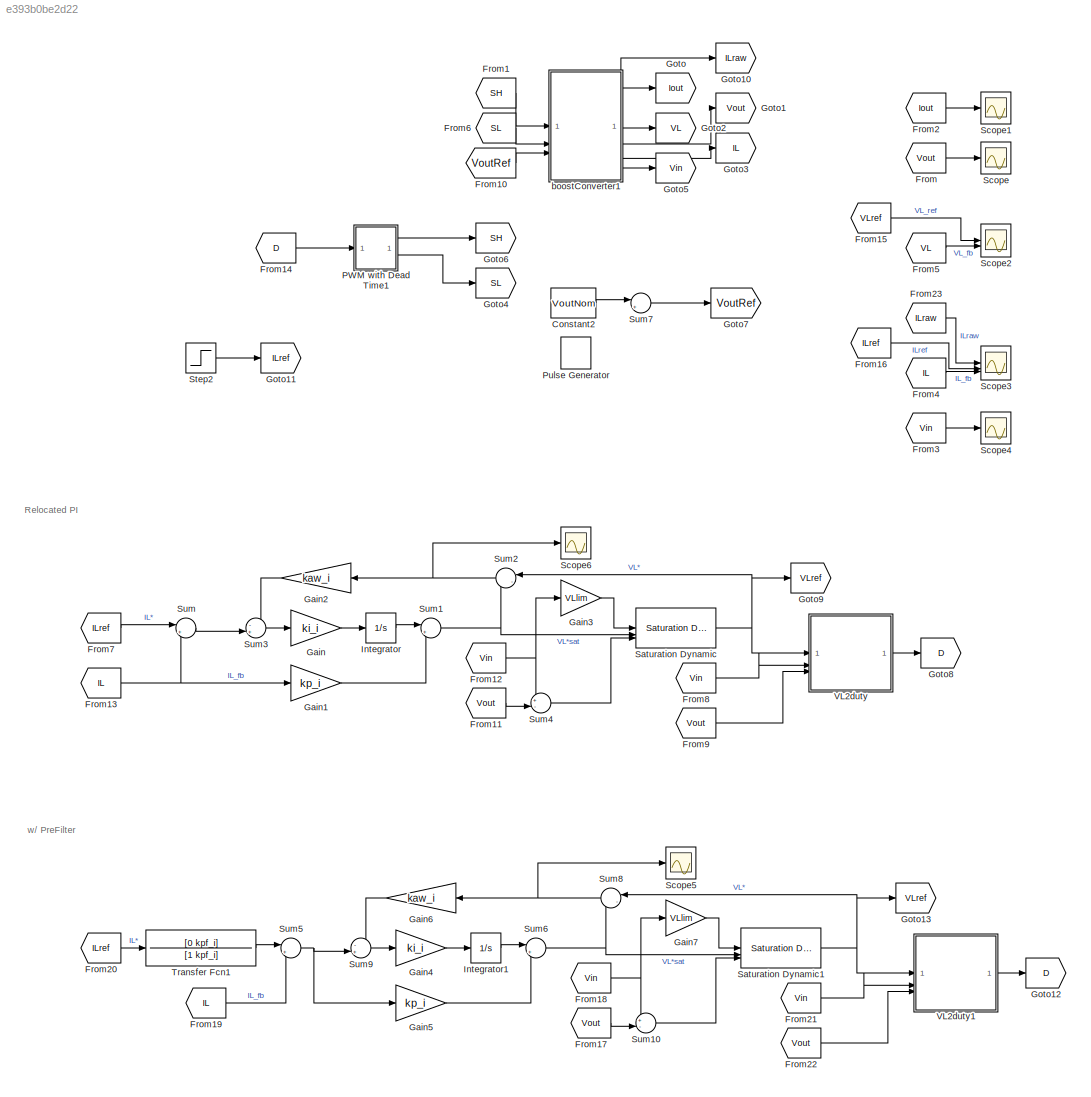
MODEL slx_e393b0be2d22
KIND model
CONFIG AbsTol = auto
CONFIG EnableMultiTasking = off
CONFIG FixedStep = Tstep
CONFIG MaxStep = auto
CONFIG MinStep = auto
CONFIG RelTol = 1e-3
CONFIG SampleTimeConstraint = Unconstrained
CONFIG SolverName = ode1
CONFIG StartTime = 0.0
CONFIG StopTime = Tsim_inLoop
BLOCK [Constant] Constant2
  Value = VoutNom
BLOCK [From] From
  GotoTag = Vout
BLOCK [From] From1
  GotoTag = SH
BLOCK [From] From10
  GotoTag = VoutRef
BLOCK [From] From11
  GotoTag = Vout
BLOCK [From] From12
  GotoTag = Vin
BLOCK [From] From13
  GotoTag = IL
BLOCK [From] From14
  GotoTag = D
BLOCK [From] From15
  GotoTag = VLref
BLOCK [From] From16
  GotoTag = ILref
BLOCK [From] From17
  Commented = on
  GotoTag = Vout
BLOCK [From] From18
  Commented = on
  GotoTag = Vin
BLOCK [From] From19
  Commented = on
  GotoTag = IL
BLOCK [From] From2
  GotoTag = Iout
BLOCK [From] From20
  Commented = on
  GotoTag = ILref
BLOCK [From] From21
  Commented = on
  GotoTag = Vin
BLOCK [From] From22
  Commented = on
  GotoTag = Vout
BLOCK [From] From23
  GotoTag = ILraw
BLOCK [From] From3
  GotoTag = Vin
BLOCK [From] From4
  GotoTag = IL
BLOCK [From] From5
  GotoTag = VL
BLOCK [From] From6
  GotoTag = SL
BLOCK [From] From7
  GotoTag = ILref
BLOCK [From] From8
  GotoTag = Vin
BLOCK [From] From9
  GotoTag = Vout
BLOCK [Gain] Gain
  Gain = ki_i
BLOCK [Gain] Gain1
  Gain = kp_i
BLOCK [Gain] Gain2
  Gain = kaw_i
  NameLocation = top
BLOCK [Gain] Gain3
  Gain = VLlim
BLOCK [Gain] Gain4
  Commented = on
  Gain = ki_i
BLOCK [Gain] Gain5
  Commented = on
  Gain = kp_i
BLOCK [Gain] Gain6
  Commented = on
  Gain = kaw_i
  NameLocation = top
BLOCK [Gain] Gain7
  Commented = on
  Gain = VLlim
BLOCK [Goto] Goto
  GotoTag = Iout
BLOCK [Goto] Goto1
  GotoTag = Vout
BLOCK [Goto] Goto10
  GotoTag = ILraw
BLOCK [Goto] Goto11
  GotoTag = ILref
BLOCK [Goto] Goto12
  Commented = on
  GotoTag = D
BLOCK [Goto] Goto13
  Commented = on
  GotoTag = VLref
BLOCK [Goto] Goto2
  GotoTag = VL
BLOCK [Goto] Goto3
  GotoTag = IL
BLOCK [Goto] Goto4
  GotoTag = SL
BLOCK [Goto] Goto5
  GotoTag = Vin
BLOCK [Goto] Goto6
  GotoTag = SH
BLOCK [Goto] Goto7
  GotoTag = VoutRef
BLOCK [Goto] Goto8
  GotoTag = D
BLOCK [Goto] Goto9
  GotoTag = VLref
BLOCK [Integrator] Integrator
BLOCK [Integrator] Integrator1
  Commented = on
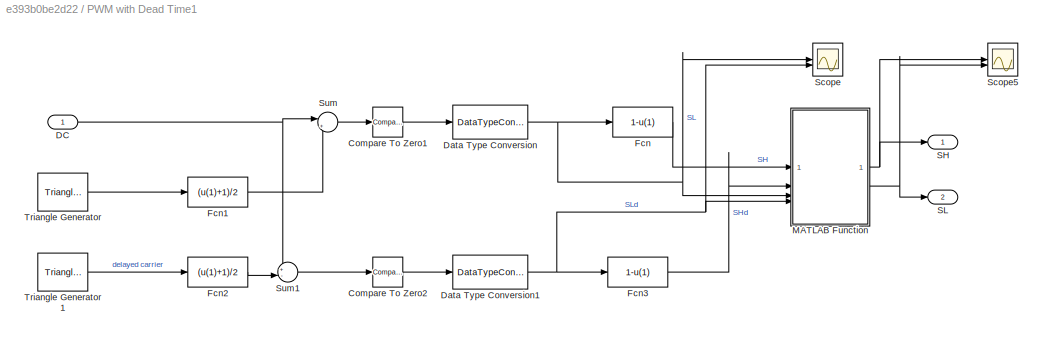
BLOCK [SubSystem] PWM with Dead Time1
BLOCK [Reference] PWM with Dead Time1/Compare To Zero1  REF=simulink/Logic and Bit
Operations/Compare
To Zero
  SourceBlock = simulink/Logic and Bit\nOperations/Compare\nTo Zero
  SourceType = Compare To Zero
BLOCK [Reference] PWM with Dead Time1/Compare To Zero2  REF=simulink/Logic and Bit
Operations/Compare
To Zero
  SourceBlock = simulink/Logic and Bit\nOperations/Compare\nTo Zero
  SourceType = Compare To Zero
BLOCK [Inport] PWM with Dead Time1/DC
BLOCK [DataTypeConversion] PWM with Dead Time1/Data Type Conversion
  RndMeth = Floor
  SaturateOnIntegerOverflow = off
BLOCK [DataTypeConversion] PWM with Dead Time1/Data Type Conversion1
  RndMeth = Floor
  SaturateOnIntegerOverflow = off
BLOCK [Fcn] PWM with Dead Time1/Fcn
  Expr = 1-u(1)
BLOCK [Fcn] PWM with Dead Time1/Fcn1
  Expr = (u(1)+1)/2
BLOCK [Fcn] PWM with Dead Time1/Fcn2
  Expr = (u(1)+1)/2
BLOCK [Fcn] PWM with Dead Time1/Fcn3
  Expr = 1-u(1)
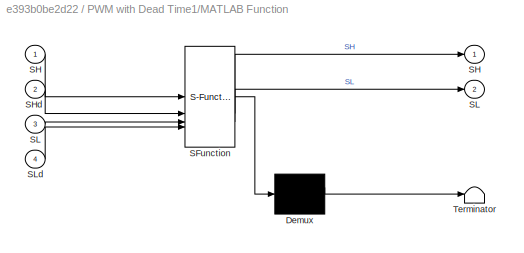
BLOCK [SubSystem] PWM with Dead Time1/MATLAB Function
  ErrorFcn = Stateflow.Translate.translate
  PermitHierarchicalResolution = ExplicitOnly
  SFBlockType = MATLAB Function
  TreatAsAtomicUnit = on
BLOCK [Demux] PWM with Dead Time1/MATLAB Function/ Demux 
  Outputs = 1
BLOCK [S-Function] PWM with Dead Time1/MATLAB Function/ SFunction 
  EnableBusSupport = off
  FunctionName = sf_sfun
  PortCounts = [4 3]
  SFcnIsStateOwnerBlock = off
  SFunctionDeploymentMode = off
  Tag = Stateflow S-Function 2
BLOCK [Terminator] PWM with Dead Time1/MATLAB Function/ Terminator 
BLOCK [Outport] PWM with Dead Time1/MATLAB Function/SH
BLOCK [Inport] PWM with Dead Time1/MATLAB Function/SH 
BLOCK [Inport] PWM with Dead Time1/MATLAB Function/SHd
  Port = 2
BLOCK [Outport] PWM with Dead Time1/MATLAB Function/SL
  Port = 2
BLOCK [Inport] PWM with Dead Time1/MATLAB Function/SL 
  Port = 3
BLOCK [Inport] PWM with Dead Time1/MATLAB Function/SLd
  Port = 4
BLOCK [Outport] PWM with Dead Time1/SH
BLOCK [Outport] PWM with Dead Time1/SL
  Port = 2
BLOCK [Scope] PWM with Dead Time1/Scope
  Floating = off
  NameLocation = left
  NumInputPorts = 2
  ScopeSpecificationString = Simulink.scopes.TimeScopeBlockCfg('CurrentConfiguration', extmgr.ConfigurationSet(extmgr.Configuration('Core','General UI',true),extmgr.Configuration('Core','Source UI',true),extmgr.Configuration('Sources','WiredSimulink',true,'DataLoggingVariableName','ScopeData1'),extmgr.Configuration('Visuals','Time Domain',true,'SerializedDisplays',{struct('MinYLimReal','-0.125','MaxYLimReal','1.125','YLabelRe...<+1399ch>
BLOCK [Scope] PWM with Dead Time1/Scope5
  Floating = off
  NumInputPorts = 2
  ScopeSpecificationString = Simulink.scopes.TimeScopeBlockCfg('CurrentConfiguration', extmgr.ConfigurationSet(extmgr.Configuration('Core','General UI',true),extmgr.Configuration('Core','Source UI',true),extmgr.Configuration('Sources','WiredSimulink',true,'DataLoggingVariableName','ScopeData1'),extmgr.Configuration('Visuals','Time Domain',true,'SerializedDisplays',{struct('MinYLimReal','-0.125','MaxYLimReal','1.125','YLabelRe...<+1482ch>
BLOCK [Sum] PWM with Dead Time1/Sum
  Inputs = |+-
BLOCK [Sum] PWM with Dead Time1/Sum1
  Inputs = +-|
BLOCK [Reference] PWM with Dead Time1/Triangle Generator  REF=spsTriangleGeneratorLib/Triangle
Generator
  LibrarySourceBlock = sps_lib/Sources/Signal Generator Sources/Triangle\nGenerator
  SourceBlock = spsTriangleGeneratorLib/Triangle\nGenerator
  SourceType = Triangle Generator
BLOCK [Reference] PWM with Dead Time1/Triangle Generator1  REF=spsTriangleGeneratorLib/Triangle
Generator
  LibrarySourceBlock = sps_lib/Sources/Signal Generator Sources/Triangle\nGenerator
  SourceBlock = spsTriangleGeneratorLib/Triangle\nGenerator
  SourceType = Triangle Generator
BLOCK [DiscretePulseGenerator] Pulse Generator
  Amplitude = -VoutNom/10
  NameLocation = top
  Period = 0.06
  PulseType = Time based
  PulseWidth = 50
BLOCK [Reference] Saturation Dynamic  REF=simulink/Discontinuities/Saturation
Dynamic
  SourceBlock = simulink/Discontinuities/Saturation\nDynamic
  SourceType = Saturation Dynamic
BLOCK [Reference] Saturation Dynamic1  REF=simulink/Discontinuities/Saturation
Dynamic
  Commented = on
  SourceBlock = simulink/Discontinuities/Saturation\nDynamic
  SourceType = Saturation Dynamic
BLOCK [Scope] Scope
  Floating = off
  NumInputPorts = 1
  ScopeSpecificationString = Simulink.scopes.TimeScopeBlockCfg('CurrentConfiguration', extmgr.ConfigurationSet(extmgr.Configuration('Core','General UI',true),extmgr.Configuration('Core','Source UI',true),extmgr.Configuration('Sources','WiredSimulink',true),extmgr.Configuration('Visuals','Time Domain',true,'SerializedDisplays',{struct('MinYLimReal','-94.16002','MaxYLimReal','847.44021','YLabelReal','','MinYLimMag','0.00000','M...<+1388ch>
BLOCK [Scope] Scope1
  Floating = off
  NumInputPorts = 1
  ScopeSpecificationString = Simulink.scopes.TimeScopeBlockCfg('CurrentConfiguration', extmgr.ConfigurationSet(extmgr.Configuration('Core','General UI',true),extmgr.Configuration('Core','Source UI',true),extmgr.Configuration('Sources','WiredSimulink',true,'DataLoggingVariableName','ScopeData1'),extmgr.Configuration('Visuals','Time Domain',true,'SerializedDisplays',{struct('MinYLimReal','-0.05101','MaxYLimReal','0.45908','YLab...<+1409ch>
BLOCK [Scope] Scope2
  Floating = off
  NumInputPorts = 2
  ScopeSpecificationString = Simulink.scopes.TimeScopeBlockCfg('CurrentConfiguration', extmgr.ConfigurationSet(extmgr.Configuration('Core','General UI',true),extmgr.Configuration('Core','Source UI',true),extmgr.Configuration('Sources','WiredSimulink',true,'DataLoggingVariableName','ScopeData2'),extmgr.Configuration('Visuals','Time Domain',true,'SerializedDisplays',{struct('MinYLimReal','-32.59384','MaxYLimReal','42.84875','YL...<+1377ch>
BLOCK [Scope] Scope3
  Floating = off
  NumInputPorts = 3
  ScopeSpecificationString = Simulink.scopes.TimeScopeBlockCfg('CurrentConfiguration', extmgr.ConfigurationSet(extmgr.Configuration('Core','General UI',true),extmgr.Configuration('Core','Source UI',true),extmgr.Configuration('Sources','WiredSimulink',true,'DataLoggingVariableName','ScopeData3'),extmgr.Configuration('Visuals','Time Domain',true,'SerializedDisplays',{struct('MinYLimReal','-1.22687','MaxYLimReal','6.4375','YLabe...<+1514ch>
BLOCK [Scope] Scope4
  Floating = off
  NumInputPorts = 1
  ScopeSpecificationString = Simulink.scopes.TimeScopeBlockCfg('CurrentConfiguration', extmgr.ConfigurationSet(extmgr.Configuration('Core','General UI',true),extmgr.Configuration('Core','Source UI',true),extmgr.Configuration('Sources','WiredSimulink',true,'DataLoggingVariableName','ScopeData4'),extmgr.Configuration('Visuals','Time Domain',true),extmgr.Configuration('Tools','Plot Navigation',true),extmgr.Configuration('Tools',...<+40ch>
BLOCK [Scope] Scope5
  Commented = on
  Floating = off
  NumInputPorts = 1
  ScopeSpecificationString = Simulink.scopes.TimeScopeBlockCfg('CurrentConfiguration', extmgr.ConfigurationSet(extmgr.Configuration('Core','General UI',true),extmgr.Configuration('Core','Source UI',true),extmgr.Configuration('Sources','WiredSimulink',true,'DataLoggingVariableName','ScopeData1'),extmgr.Configuration('Visuals','Time Domain',true,'SerializedDisplays',{struct('MinYLimReal','-0.00687','MaxYLimReal','0.06186','YLab...<+1363ch>
BLOCK [Scope] Scope6
  Floating = off
  NumInputPorts = 1
  ScopeSpecificationString = Simulink.scopes.TimeScopeBlockCfg('CurrentConfiguration', extmgr.ConfigurationSet(extmgr.Configuration('Core','General UI',true),extmgr.Configuration('Core','Source UI',true),extmgr.Configuration('Sources','WiredSimulink',true,'DataLoggingVariableName','ScopeData2'),extmgr.Configuration('Visuals','Time Domain',true,'SerializedDisplays',{struct('MinYLimReal','-0.00687','MaxYLimReal','0.06186','YLab...<+1363ch>
BLOCK [Step] Step2
  After = ILnom
  SampleTime = 0
  Time = 0.02
BLOCK [Sum] Sum
  Inputs = |+-
BLOCK [Sum] Sum1
  Inputs = |+-
BLOCK [Sum] Sum10
  Commented = on
  Inputs = +-|
BLOCK [Sum] Sum2
  Inputs = |-+
  NameLocation = top
BLOCK [Sum] Sum3
  Inputs = -+|
BLOCK [Sum] Sum4
  Inputs = +-|
BLOCK [Sum] Sum5
  Commented = on
  Inputs = |+-
BLOCK [Sum] Sum6
  Commented = on
  Inputs = |++
BLOCK [Sum] Sum7
  Inputs = |++
BLOCK [Sum] Sum8
  Commented = on
  Inputs = |-+
  NameLocation = top
BLOCK [Sum] Sum9
  Commented = on
  Inputs = -+|
BLOCK [TransferFcn] Transfer Fcn1
  Commented = on
  Denominator = [1 kpf_i]
  Numerator = [0 kpf_i]
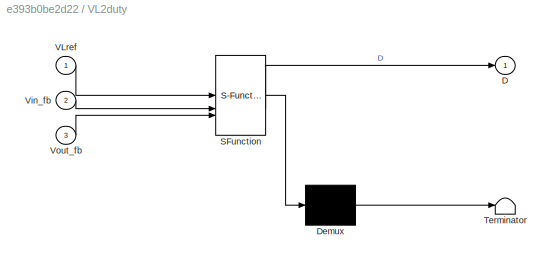
BLOCK [SubSystem] VL2duty
  ErrorFcn = Stateflow.Translate.translate
  PermitHierarchicalResolution = ExplicitOnly
  SFBlockType = MATLAB Function
  TreatAsAtomicUnit = on
BLOCK [Demux] VL2duty/ Demux 
  Outputs = 1
BLOCK [S-Function] VL2duty/ SFunction 
  EnableBusSupport = off
  FunctionName = sf_sfun
  PortCounts = [3 2]
  SFcnIsStateOwnerBlock = off
  SFunctionDeploymentMode = off
  Tag = Stateflow S-Function 1
BLOCK [Terminator] VL2duty/ Terminator 
BLOCK [Outport] VL2duty/D
  VectorParamsAs1DForOutWhenUnconnected = off
BLOCK [Inport] VL2duty/VLref
BLOCK [Inport] VL2duty/Vin_fb
  Port = 2
BLOCK [Inport] VL2duty/Vout_fb
  Port = 3
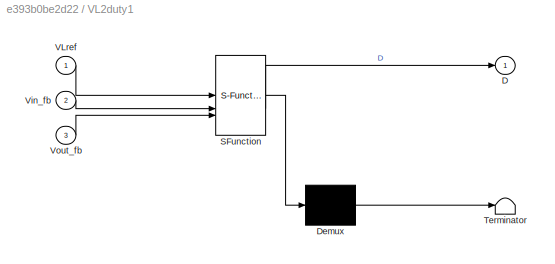
BLOCK [SubSystem] VL2duty1
  Commented = on
  ErrorFcn = Stateflow.Translate.translate
  PermitHierarchicalResolution = ExplicitOnly
  SFBlockType = MATLAB Function
  TreatAsAtomicUnit = on
BLOCK [Demux] VL2duty1/ Demux 
  Outputs = 1
BLOCK [S-Function] VL2duty1/ SFunction 
  EnableBusSupport = off
  FunctionName = sf_sfun
  PortCounts = [3 2]
  SFcnIsStateOwnerBlock = off
  SFunctionDeploymentMode = off
  Tag = Stateflow S-Function 3
BLOCK [Terminator] VL2duty1/ Terminator 
BLOCK [Outport] VL2duty1/D
  VectorParamsAs1DForOutWhenUnconnected = off
BLOCK [Inport] VL2duty1/VLref
BLOCK [Inport] VL2duty1/Vin_fb
  Port = 2
BLOCK [Inport] VL2duty1/Vout_fb
  Port = 3
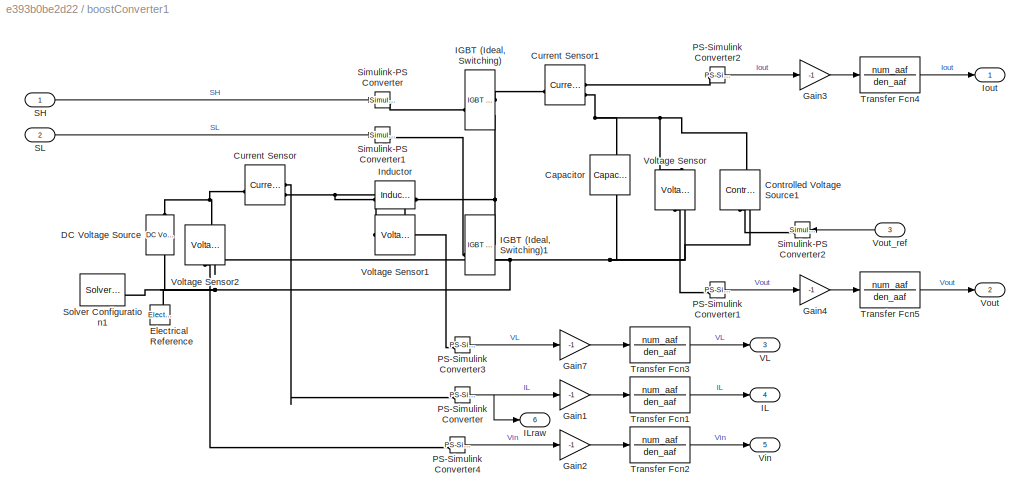
BLOCK [SubSystem] boostConverter1
  PortSchema = {"entries":[{"content":{"sides":[{"content":{"connectorIds":["In1","In2","In3"]},"type":"ConnectorPlacement.EquallySpacedRectSide","uuid":"f64c5b96-5270-450d-83a1-7f94004d5741"},{"content":{"connectorIds":["Out1","Out2","Out3","Out4","Out5"],"side":"RIGHT"},"type":"ConnectorPlacement.EquallySpacedRectSide","uuid":"abc9637e-7ceb-4796-9d9d-6f7414985a96"},{"content":{"connectorIds":["Out6"],"side":"T...<+286ch>
BLOCK [Reference] boostConverter1/Capacitor  REF=fl_lib/Electrical/Electrical Elements/Capacitor
  NameLocation = left
  SourceBlock = fl_lib/Electrical/Electrical Elements/Capacitor
  SourceType = Capacitor
BLOCK [Reference] boostConverter1/Controlled Voltage Source1  REF=fl_lib/Electrical/Electrical Sources/Controlled Voltage
Source
  NameLocation = right
  SourceBlock = fl_lib/Electrical/Electrical Sources/Controlled Voltage\nSource
  SourceType = Controlled Voltage\nSource
BLOCK [Reference] boostConverter1/Current Sensor  REF=fl_lib/Electrical/Electrical Sensors/Current Sensor
  LibrarySourceBlock = ee_lib/Sensors &\nTransducers/Current Sensor
  SourceBlock = fl_lib/Electrical/Electrical Sensors/Current Sensor
  SourceType = Current Sensor
BLOCK [Reference] boostConverter1/Current Sensor1  REF=fl_lib/Electrical/Electrical Sensors/Current Sensor
  LibrarySourceBlock = ee_lib/Sensors &\nTransducers/Current Sensor
  SourceBlock = fl_lib/Electrical/Electrical Sensors/Current Sensor
  SourceType = Current Sensor
BLOCK [Reference] boostConverter1/DC Voltage Source  REF=fl_lib/Electrical/Electrical Sources/DC Voltage Source
  NameLocation = right
  SourceBlock = fl_lib/Electrical/Electrical Sources/DC Voltage Source
  SourceType = DC Voltage Source
BLOCK [Reference] boostConverter1/Electrical Reference  REF=fl_lib/Electrical/Electrical Elements/Electrical Reference
  NameLocation = right
  SourceBlock = fl_lib/Electrical/Electrical Elements/Electrical Reference
  SourceType = Electrical Reference
BLOCK [Gain] boostConverter1/Gain1
  Gain = -1
BLOCK [Gain] boostConverter1/Gain2
  Gain = -1
BLOCK [Gain] boostConverter1/Gain3
  Gain = -1
BLOCK [Gain] boostConverter1/Gain4
  Gain = -1
BLOCK [Gain] boostConverter1/Gain7
  Gain = -1
BLOCK [Reference] boostConverter1/IGBT (Ideal, Switching)  REF=ee_lib/Semiconductors &
Converters/IGBT
(Ideal,
Switching)
  SourceBlock = ee_lib/Semiconductors &\nConverters/IGBT\n(Ideal,\nSwitching)
  SourceType = IGBT\n(Ideal,\nSwitching)
BLOCK [Reference] boostConverter1/IGBT (Ideal, Switching)1  REF=ee_lib/Semiconductors &
Converters/IGBT
(Ideal,
Switching)
  SourceBlock = ee_lib/Semiconductors &\nConverters/IGBT\n(Ideal,\nSwitching)
  SourceType = IGBT\n(Ideal,\nSwitching)
BLOCK [Outport] boostConverter1/IL
  Port = 4
BLOCK [Outport] boostConverter1/ILraw
  Port = 6
BLOCK [Reference] boostConverter1/Inductor  REF=fl_lib/Electrical/Electrical Elements/Inductor
  SourceBlock = fl_lib/Electrical/Electrical Elements/Inductor
  SourceType = Inductor
BLOCK [Outport] boostConverter1/Iout
BLOCK [Reference] boostConverter1/PS-Simulink Converter  REF=nesl_utility/PS-Simulink
Converter
  SourceBlock = nesl_utility/PS-Simulink\nConverter
  SourceType = PS-Simulink\nConverter
BLOCK [Reference] boostConverter1/PS-Simulink Converter1  REF=nesl_utility/PS-Simulink
Converter
  SourceBlock = nesl_utility/PS-Simulink\nConverter
  SourceType = PS-Simulink\nConverter
BLOCK [Reference] boostConverter1/PS-Simulink Converter2  REF=nesl_utility/PS-Simulink
Converter
  SourceBlock = nesl_utility/PS-Simulink\nConverter
  SourceType = PS-Simulink\nConverter
BLOCK [Reference] boostConverter1/PS-Simulink Converter3  REF=nesl_utility/PS-Simulink
Converter
  SourceBlock = nesl_utility/PS-Simulink\nConverter
  SourceType = PS-Simulink\nConverter
BLOCK [Reference] boostConverter1/PS-Simulink Converter4  REF=nesl_utility/PS-Simulink
Converter
  SourceBlock = nesl_utility/PS-Simulink\nConverter
  SourceType = PS-Simulink\nConverter
BLOCK [Inport] boostConverter1/SH
BLOCK [Inport] boostConverter1/SL
  Port = 2
BLOCK [Reference] boostConverter1/Simulink-PS Converter  REF=nesl_utility/Simulink-PS
Converter
  SourceBlock = nesl_utility/Simulink-PS\nConverter
  SourceType = Simulink-PS\nConverter
BLOCK [Reference] boostConverter1/Simulink-PS Converter1  REF=nesl_utility/Simulink-PS
Converter
  SourceBlock = nesl_utility/Simulink-PS\nConverter
  SourceType = Simulink-PS\nConverter
BLOCK [Reference] boostConverter1/Simulink-PS Converter2  REF=nesl_utility/Simulink-PS
Converter
  SourceBlock = nesl_utility/Simulink-PS\nConverter
  SourceType = Simulink-PS\nConverter
BLOCK [Reference] boostConverter1/Solver Configuration1  REF=nesl_utility/Solver
Configuration
  SourceBlock = nesl_utility/Solver\nConfiguration
  SourceType = Solver\nConfiguration
BLOCK [TransferFcn] boostConverter1/Transfer Fcn1
  Denominator = den_aaf
  Numerator = num_aaf
BLOCK [TransferFcn] boostConverter1/Transfer Fcn2
  Denominator = den_aaf
  Numerator = num_aaf
BLOCK [TransferFcn] boostConverter1/Transfer Fcn3
  Denominator = den_aaf
  Numerator = num_aaf
BLOCK [TransferFcn] boostConverter1/Transfer Fcn4
  Denominator = den_aaf
  Numerator = num_aaf
BLOCK [TransferFcn] boostConverter1/Transfer Fcn5
  Denominator = den_aaf
  Numerator = num_aaf
BLOCK [Outport] boostConverter1/VL
  Port = 3
BLOCK [Outport] boostConverter1/Vin
  Port = 5
BLOCK [Reference] boostConverter1/Voltage Sensor  REF=fl_lib/Electrical/Electrical Sensors/Voltage Sensor
  LibrarySourceBlock = ee_lib/Sensors &\nTransducers/Voltage Sensor
  NameLocation = right
  SourceBlock = fl_lib/Electrical/Electrical Sensors/Voltage Sensor
  SourceType = Voltage Sensor
BLOCK [Reference] boostConverter1/Voltage Sensor1  REF=fl_lib/Electrical/Electrical Sensors/Voltage Sensor
  LibrarySourceBlock = ee_lib/Sensors &\nTransducers/Voltage Sensor
  NameLocation = top
  SourceBlock = fl_lib/Electrical/Electrical Sensors/Voltage Sensor
  SourceType = Voltage Sensor
BLOCK [Reference] boostConverter1/Voltage Sensor2  REF=fl_lib/Electrical/Electrical Sensors/Voltage Sensor
  LibrarySourceBlock = ee_lib/Sensors &\nTransducers/Voltage Sensor
  NameLocation = right
  SourceBlock = fl_lib/Electrical/Electrical Sensors/Voltage Sensor
  SourceType = Voltage Sensor
BLOCK [Outport] boostConverter1/Vout
  Port = 2
BLOCK [Inport] boostConverter1/Vout_ref
  NameLocation = top
  Port = 3
ANNOTATION (root): Relocated PI
ANNOTATION (root): w/ PreFilter
LINE Constant2:1 -> Sum7:1
LINE From10:1 -> boostConverter1:3
LINE From11:1 -> Sum4:2
NET From12:1 -> Gain3:1, Sum4:1
NET From13:1 -> Gain1:1, Sum:2
LINE From14:1 -> PWM with Dead Time1:1
LINE From15:1 -> Scope2:1
LINE From16:1 -> Scope3:2
LINE From17:1 -> Sum10:2
NET From18:1 -> Gain7:1, Sum10:1
LINE From19:1 -> Sum5:2
LINE From1:1 -> boostConverter1:1
LINE From20:1 -> Transfer Fcn1:1
LINE From21:1 -> VL2duty1:2
LINE From22:1 -> VL2duty1:3
LINE From23:1 -> Scope3:1
LINE From2:1 -> Scope1:1
LINE From3:1 -> Scope4:1
LINE From4:1 -> Scope3:3
LINE From5:1 -> Scope2:2
LINE From6:1 -> boostConverter1:2
LINE From7:1 -> Sum:1
LINE From8:1 -> VL2duty:2
LINE From9:1 -> VL2duty:3
LINE From:1 -> Scope:1
LINE Gain1:1 -> Sum1:2
LINE Gain2:1 -> Sum3:1
LINE Gain3:1 -> Saturation Dynamic:1
LINE Gain4:1 -> Integrator1:1
LINE Gain5:1 -> Sum6:2
LINE Gain6:1 -> Sum9:1
LINE Gain7:1 -> Saturation Dynamic1:1
LINE Gain:1 -> Integrator:1
LINE Integrator1:1 -> Sum6:1
LINE Integrator:1 -> Sum1:1
LINE PWM with Dead Time1/Compare To Zero1:1 -> PWM with Dead Time1/Data Type Conversion:1
LINE PWM with Dead Time1/Compare To Zero2:1 -> PWM with Dead Time1/Data Type Conversion1:1
NET PWM with Dead Time1/DC:1 -> PWM with Dead Time1/Sum1:1, PWM with Dead Time1/Sum:1
NET PWM with Dead Time1/Data Type Conversion1:1 -> PWM with Dead Time1/Fcn3:1, PWM with Dead Time1/MATLAB Function:4, PWM with Dead Time1/Scope:2
NET PWM with Dead Time1/Data Type Conversion:1 -> PWM with Dead Time1/Fcn:1, PWM with Dead Time1/MATLAB Function:3, PWM with Dead Time1/Scope:1
LINE PWM with Dead Time1/Fcn1:1 -> PWM with Dead Time1/Sum:2
LINE PWM with Dead Time1/Fcn2:1 -> PWM with Dead Time1/Sum1:2
LINE PWM with Dead Time1/Fcn3:1 -> PWM with Dead Time1/MATLAB Function:2
LINE PWM with Dead Time1/Fcn:1 -> PWM with Dead Time1/MATLAB Function:1
NET PWM with Dead Time1/MATLAB Function:1 -> PWM with Dead Time1/SH:1, PWM with Dead Time1/Scope5:1
NET PWM with Dead Time1/MATLAB Function:2 -> PWM with Dead Time1/SL:1, PWM with Dead Time1/Scope5:2
LINE PWM with Dead Time1/Sum1:1 -> PWM with Dead Time1/Compare To Zero2:1
LINE PWM with Dead Time1/Sum:1 -> PWM with Dead Time1/Compare To Zero1:1
LINE PWM with Dead Time1/Triangle Generator1:1 -> PWM with Dead Time1/Fcn2:1
LINE PWM with Dead Time1/Triangle Generator:1 -> PWM with Dead Time1/Fcn1:1
LINE PWM with Dead Time1:1 -> Goto6:1
LINE PWM with Dead Time1:2 -> Goto4:1
NET Saturation Dynamic1:1 -> Goto13:1, Sum8:1, VL2duty1:1
NET Saturation Dynamic:1 -> Goto9:1, Sum2:1, VL2duty:1
LINE Step2:1 -> Goto11:1
LINE Sum10:1 -> Saturation Dynamic1:3
NET Sum1:1 -> Saturation Dynamic:2, Sum2:2
NET Sum2:1 -> Gain2:1, Scope6:1
LINE Sum3:1 -> Gain:1
LINE Sum4:1 -> Saturation Dynamic:3
NET Sum5:1 -> Gain5:1, Sum9:2
NET Sum6:1 -> Saturation Dynamic1:2, Sum8:2
LINE Sum7:1 -> Goto7:1
NET Sum8:1 -> Gain6:1, Scope5:1
LINE Sum9:1 -> Gain4:1
LINE Sum:1 -> Sum3:2
LINE Transfer Fcn1:1 -> Sum5:1
LINE VL2duty1:1 -> Goto12:1
LINE VL2duty:1 -> Goto8:1
LINE boostConverter1/Gain1:1 -> boostConverter1/Transfer Fcn1:1
LINE boostConverter1/Gain2:1 -> boostConverter1/Transfer Fcn2:1
LINE boostConverter1/Gain3:1 -> boostConverter1/Transfer Fcn4:1
LINE boostConverter1/Gain4:1 -> boostConverter1/Transfer Fcn5:1
LINE boostConverter1/Gain7:1 -> boostConverter1/Transfer Fcn3:1
LINE boostConverter1/PS-Simulink Converter1:1 -> boostConverter1/Gain4:1
LINE boostConverter1/PS-Simulink Converter2:1 -> boostConverter1/Gain3:1
LINE boostConverter1/PS-Simulink Converter3:1 -> boostConverter1/Gain7:1
LINE boostConverter1/PS-Simulink Converter4:1 -> boostConverter1/Gain2:1
NET boostConverter1/PS-Simulink Converter:1 -> boostConverter1/Gain1:1, boostConverter1/ILraw:1
LINE boostConverter1/SH:1 -> boostConverter1/Simulink-PS Converter:1
LINE boostConverter1/SL:1 -> boostConverter1/Simulink-PS Converter1:1
LINE boostConverter1/Transfer Fcn1:1 -> boostConverter1/IL:1
LINE boostConverter1/Transfer Fcn2:1 -> boostConverter1/Vin:1
LINE boostConverter1/Transfer Fcn3:1 -> boostConverter1/VL:1
LINE boostConverter1/Transfer Fcn4:1 -> boostConverter1/Iout:1
LINE boostConverter1/Transfer Fcn5:1 -> boostConverter1/Vout:1
LINE boostConverter1/Vout_ref:1 -> boostConverter1/Simulink-PS Converter2:1
LINE boostConverter1:1 -> Goto:1
LINE boostConverter1:2 -> Goto1:1
LINE boostConverter1:3 -> Goto2:1
LINE boostConverter1:4 -> Goto3:1
LINE boostConverter1:5 -> Goto5:1
LINE boostConverter1:6 -> Goto10:1
PNET net1: boostConverter1/Capacitor:LConn1 -- boostConverter1/Controlled Voltage Source1:LConn1 -- boostConverter1/Current Sensor1:RConn2 -- boostConverter1/Voltage Sensor:LConn1
PNET net2: boostConverter1/Capacitor:RConn1 -- boostConverter1/Controlled Voltage Source1:RConn2 -- boostConverter1/DC Voltage Source:RConn1 -- boostConverter1/Electrical Reference:LConn1 -- boostConverter1/IGBT (Ideal, Switching)1:RConn2 -- boostConverter1/Solver Configuration1:RConn1 -- boostConverter1/Voltage Sensor2:RConn2 -- boostConverter1/Voltage Sensor:RConn2
PLINE boostConverter1/Controlled Voltage Source1:RConn1 -- boostConverter1/Simulink-PS Converter2:RConn1
PLINE boostConverter1/Current Sensor1:LConn1 -- boostConverter1/IGBT (Ideal, Switching):RConn1
PLINE boostConverter1/Current Sensor1:RConn1 -- boostConverter1/PS-Simulink Converter2:LConn1
PNET net3: boostConverter1/Current Sensor:LConn1 -- boostConverter1/DC Voltage Source:LConn1 -- boostConverter1/Voltage Sensor2:LConn1
PLINE boostConverter1/Current Sensor:RConn1 -- boostConverter1/PS-Simulink Converter:LConn1
PNET net4: boostConverter1/Current Sensor:RConn2 -- boostConverter1/Inductor:LConn1 -- boostConverter1/Voltage Sensor1:LConn1
PLINE boostConverter1/IGBT (Ideal, Switching)1:LConn1 -- boostConverter1/Simulink-PS Converter1:RConn1
PNET net5: boostConverter1/IGBT (Ideal, Switching)1:RConn1 -- boostConverter1/IGBT (Ideal, Switching):RConn2 -- boostConverter1/Inductor:RConn1 -- boostConverter1/Voltage Sensor1:RConn2
PLINE boostConverter1/IGBT (Ideal, Switching):LConn1 -- boostConverter1/Simulink-PS Converter:RConn1
PLINE boostConverter1/PS-Simulink Converter1:LConn1 -- boostConverter1/Voltage Sensor:RConn1
PLINE boostConverter1/PS-Simulink Converter3:LConn1 -- boostConverter1/Voltage Sensor1:RConn1
PLINE boostConverter1/PS-Simulink Converter4:LConn1 -- boostConverter1/Voltage Sensor2:RConn1
note: NET lines group one-source signal fan-out (src -> all destinations, sorted); 1:1 wires keep LINE; PNET lines group multi-terminal physical nets as a canonical sorted terminal list (undirected conserving connections); 2-terminal nets keep the pairwise PLINE form
CHART VL2duty states=1 transitions=1
  STATE_LABEL 'eML_blk_kernel()'
  STATE_LABEL 'SCRIPT:\nfunction D = fcn(VLref,Vin_fb,Vout_fb)\n% Vout = Vin * 1/(1-D) where Vin = Vs-VL\n% Vout/(Vs - VL) = 1/(1-D)\nD = min([1 max([0 (1 + (VLref - Vin_fb)/Vout_fb)])]);\n'
CHART PWM with Dead Time1/MATLAB Function states=1 transitions=1
  STATE_LABEL 'eML_blk_kernel()'
  STATE_LABEL 'SCRIPT:\nfunction [SH,SL] = fcn(SH,SHd,SL,SLd)\n\nif SHd + SH > 1\n    SH = 1;\nelse\n    SH = 0;\nend\n\nif SLd + SL > 1\n    SL = 1;\nelse\n    SL = 0;\nend\n'
CHART VL2duty1 states=1 transitions=1
  STATE_LABEL 'eML_blk_kernel()'
  STATE_LABEL 'SCRIPT:\nfunction D = fcn(VLref,Vin_fb,Vout_fb)\n\nD = min([1 max([0 1 + (VLref - Vin_fb)/Vout_fb])]);\n'
CHART  states=0 transitions=0
CHART  states=0 transitions=0
CHART  states=0 transitions=0
